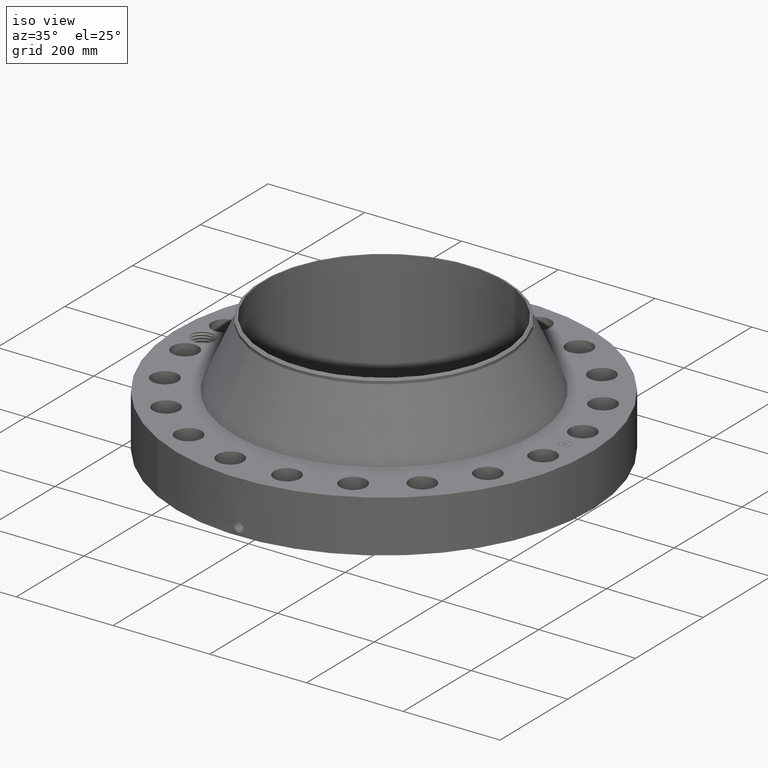
[diagram: clean part render]
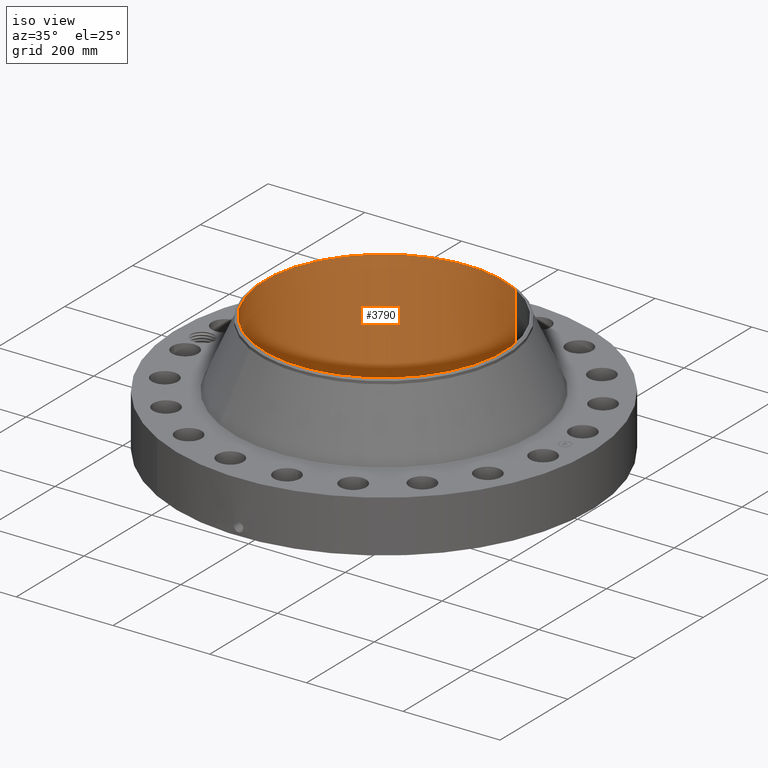
[diagram: same view with one face highlighted and labeled with its STEP entity id]
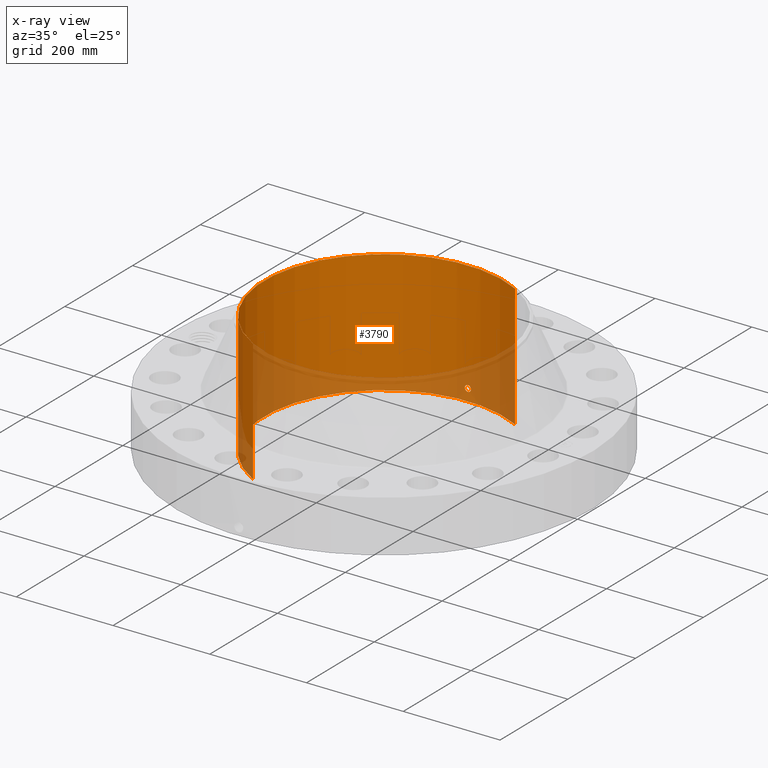
[diagram: x-ray of the same camera — body ghosted, the highlighted face saturated]
A machine part, iso view. The second image highlights one B-rep face of the part: STEP entity #3790.
The next image is the same camera in x-ray: the body ghosted, the highlighted face saturated — about 24% of this face is hidden behind the body in this view.
In plain terms, the highlighted cylindrical surface (partial cylindrical patch) has radius 247.65 mm, axis along (0, 0, -1).
Its self-contained STEP definition (entity closure, byte-faithful):
#2921=AXIS2_PLACEMENT_3D('Circle Axis2P3D',#2919,#2920,$) ;
#3667=AXIS2_PLACEMENT_3D('Cylinder Axis2P3D',#3664,#3665,#3666) ;
#3739=AXIS2_PLACEMENT_3D('Circle Axis2P3D',#3737,#3738,$) ;
#2914=CARTESIAN_POINT('Vertex',(4.67439900141,8.55642997847,-5.70672118484E-014)) ;
#2916=CARTESIAN_POINT('Vertex',(-4.67439900141,-8.55642997847,-5.70672118484E-014)) ;
#2919=CARTESIAN_POINT('Axis2P3D Location',(0.,0.,0.)) ;
#3664=CARTESIAN_POINT('Axis2P3D Location',(0.,0.,5.00000000002)) ;
#3673=CARTESIAN_POINT('Vertex',(4.67439900141,8.55642997847,10.)) ;
#3675=CARTESIAN_POINT('Vertex',(-4.67439900141,-8.55642997847,10.)) ;
#3678=CARTESIAN_POINT('Line Origine',(4.67439900141,8.55642997847,5.00000000002)) ;
#3683=CARTESIAN_POINT('Line Origine',(-4.67439900141,-8.55642997847,5.00000000002)) ;
#3737=CARTESIAN_POINT('Axis2P3D Location',(0.,0.,10.)) ;
#3749=CARTESIAN_POINT('Control Point',(0.219395640473,9.74753125431,1.05985638466)) ;
#3750=CARTESIAN_POINT('Control Point',(0.194442898515,9.74809288603,1.10553207243)) ;
#3751=CARTESIAN_POINT('Control Point',(0.157604712268,9.74884214693,1.14471231936)) ;
#3752=CARTESIAN_POINT('Control Point',(0.111106567494,9.74957085037,1.17324369375)) ;
#3753=CARTESIAN_POINT('Control Point',(0.0336712214964,9.75015062135,1.19588289359)) ;
#3754=CARTESIAN_POINT('Control Point',(-0.0446736669794,9.74995025307,1.18805601744)) ;
#3755=CARTESIAN_POINT('Control Point',(-0.0703041570989,9.74979470742,1.18204293626)) ;
#3756=CARTESIAN_POINT('Control Point',(-0.143961199259,9.74910736012,1.1542092255)) ;
#3757=CARTESIAN_POINT('Control Point',(-0.203249380238,9.74798546212,1.09949154094)) ;
#3758=CARTESIAN_POINT('Control Point',(-0.232213577137,9.74724968436,1.05325018238)) ;
#3759=CARTESIAN_POINT('Control Point',(-0.255841176908,9.74664491075,0.975104304453)) ;
#3760=CARTESIAN_POINT('Control Point',(-0.248281598038,9.74683824784,0.895741863845)) ;
#3761=CARTESIAN_POINT('Control Point',(-0.24204784952,9.74699998843,0.869181268034)) ;
#3762=CARTESIAN_POINT('Control Point',(-0.23231474776,9.74724047342,0.843791882615)) ;
#3763=CARTESIAN_POINT('Control Point',(-0.219395640473,9.74753125431,0.820143615352)) ;
#3764=CARTESIAN_POINT('Vertex',(0.219395640473,9.74753125431,1.05985638466)) ;
#3766=CARTESIAN_POINT('Vertex',(-0.219395640473,9.74753125431,0.820143615352)) ;
#3770=CARTESIAN_POINT('Control Point',(-0.219395640473,9.74753125431,0.820143615352)) ;
#3771=CARTESIAN_POINT('Control Point',(-0.194442898494,9.74809288603,0.774467927536)) ;
#3772=CARTESIAN_POINT('Control Point',(-0.157604712206,9.74884214693,0.735287680581)) ;
#3773=CARTESIAN_POINT('Control Point',(-0.11110656758,9.74957085037,0.706756306282)) ;
#3774=CARTESIAN_POINT('Control Point',(-0.0336712215414,9.75015062135,0.684117106417)) ;
#3775=CARTESIAN_POINT('Control Point',(0.0446736669762,9.74995025307,0.69194398257)) ;
#3776=CARTESIAN_POINT('Control Point',(0.0703041571018,9.74979470742,0.697957063749)) ;
#3777=CARTESIAN_POINT('Control Point',(0.143961199261,9.74910736012,0.725790774509)) ;
#3778=CARTESIAN_POINT('Control Point',(0.203249380239,9.74798546212,0.780508459068)) ;
#3779=CARTESIAN_POINT('Control Point',(0.232213577138,9.74724968436,0.826749817628)) ;
#3780=CARTESIAN_POINT('Control Point',(0.255841176907,9.74664491075,0.904895695554)) ;
#3781=CARTESIAN_POINT('Control Point',(0.248281598038,9.74683824784,0.984258136162)) ;
#3782=CARTESIAN_POINT('Control Point',(0.24204784952,9.74699998843,1.01081873197)) ;
#3783=CARTESIAN_POINT('Control Point',(0.232314747759,9.74724047342,1.03620811739)) ;
#3784=CARTESIAN_POINT('Control Point',(0.219395640473,9.74753125431,1.05985638466)) ;
#2920=DIRECTION('Axis2P3D Direction',(0.,0.,-0.0393700787402)) ;
#3665=DIRECTION('Axis2P3D Direction',(0.,0.,-0.0393700787402)) ;
#3666=DIRECTION('Axis2P3D XDirection',(-0.0188750212049,-0.0345504945626,0.)) ;
#3679=DIRECTION('Vector Direction',(0.,0.,-0.0393700787402)) ;
#3684=DIRECTION('Vector Direction',(0.,0.,-0.0393700787402)) ;
#3738=DIRECTION('Axis2P3D Direction',(0.,0.,-0.0393700787402)) ;
#3680=VECTOR('Line Direction',#3679,0.0393700787402) ;
#3685=VECTOR('Line Direction',#3684,0.0393700787402) ;
#3743=ORIENTED_EDGE('',*,*,#3741,.F.) ;
#3744=ORIENTED_EDGE('',*,*,#3687,.T.) ;
#3745=ORIENTED_EDGE('',*,*,#2923,.T.) ;
#3746=ORIENTED_EDGE('',*,*,#3682,.F.) ;
#3787=ORIENTED_EDGE('',*,*,#3768,.F.) ;
#3788=ORIENTED_EDGE('',*,*,#3785,.F.) ;
#3789=FACE_BOUND('',#3786,.T.) ;
#3790=ADVANCED_FACE('PartBody',(#3747,#3789),#3668,.F.) ;
#3748=B_SPLINE_CURVE_WITH_KNOTS('',5,(#3749,#3750,#3751,#3752,#3753,#3754,#3755,#3756,#3757,#3758,#3759,#3760,#3761,#3762,#3763),.UNSPECIFIED.,.F.,.U.,(6,3,3,3,6),(0.,9.34848236272,14.0229320636,23.3729733444,28.2130845756),.UNSPECIFIED.) ;
#3769=B_SPLINE_CURVE_WITH_KNOTS('',5,(#3770,#3771,#3772,#3773,#3774,#3775,#3776,#3777,#3778,#3779,#3780,#3781,#3782,#3783,#3784),.UNSPECIFIED.,.F.,.U.,(6,3,3,3,6),(0.,9.3484823705,14.0229320711,23.3729733519,28.2130845831),.UNSPECIFIED.) ;
#2922=CIRCLE('generated circle',#2921,9.75000000004) ;
#3740=CIRCLE('generated circle',#3739,9.75000000004) ;
#3668=CYLINDRICAL_SURFACE('generated cylinder',#3667,9.75000000004) ;
#2923=EDGE_CURVE('',#2917,#2915,#2922,.T.) ;
#3682=EDGE_CURVE('',#3674,#2915,#3681,.T.) ;
#3687=EDGE_CURVE('',#3676,#2917,#3686,.T.) ;
#3741=EDGE_CURVE('',#3676,#3674,#3740,.T.) ;
#3768=EDGE_CURVE('',#3765,#3767,#3748,.T.) ;
#3785=EDGE_CURVE('',#3767,#3765,#3769,.T.) ;
#3742=EDGE_LOOP('',(#3743,#3744,#3745,#3746)) ;
#3786=EDGE_LOOP('',(#3787,#3788)) ;
#3747=FACE_OUTER_BOUND('',#3742,.T.) ;
#3681=LINE('Line',#3678,#3680) ;
#3686=LINE('Line',#3683,#3685) ;
#2915=VERTEX_POINT('',#2914) ;
#2917=VERTEX_POINT('',#2916) ;
#3674=VERTEX_POINT('',#3673) ;
#3676=VERTEX_POINT('',#3675) ;
#3765=VERTEX_POINT('',#3764) ;
#3767=VERTEX_POINT('',#3766) ;